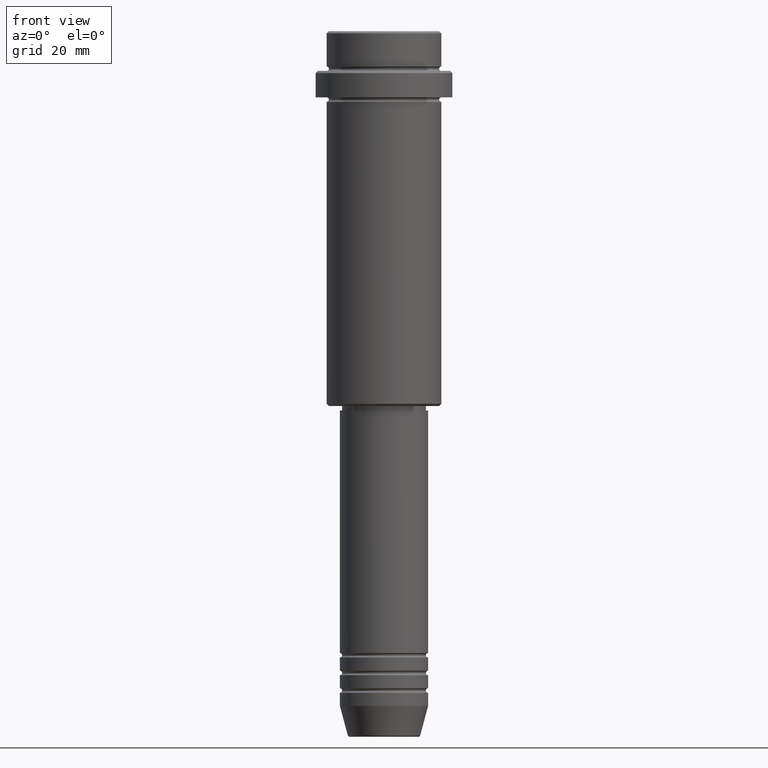
[diagram: clean part render]
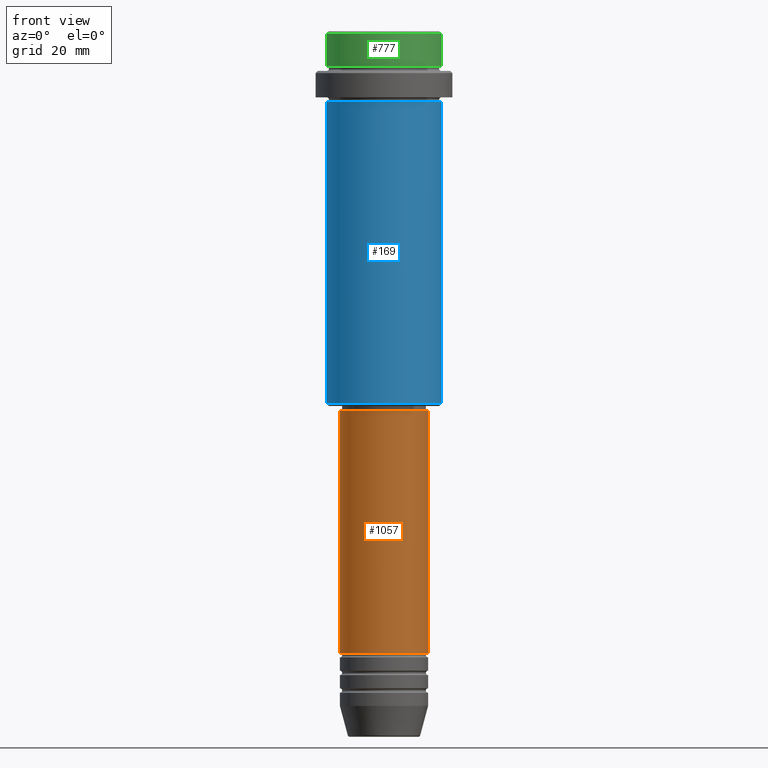
[diagram: same view with three faces highlighted in distinct colors, each labeled with its STEP entity id]
A machine part, front view with three faces highlighted in distinct colors.
Their STEP definitions:

[orange] entity #1057 — the highlighted cylindrical surface (partial cylindrical patch) has radius 10 mm, axis along (-0, -0, 1).
#23 = EDGE_CURVE ( 'NONE', #482, #1293, #562, .T. ) ;
#60 = DIRECTION ( 'NONE',  ( 1.000000000000000000, 0.000000000000000000, 0.000000000000000000 ) ) ;
#138 = DIRECTION ( 'NONE',  ( -0.000000000000000000, -0.000000000000000000, 1.000000000000000000 ) ) ;
#172 = CARTESIAN_POINT ( 'NONE',  ( 0.000000000000000000, 0.000000000000000000, -140.9999999999999147 ) ) ;
#187 = CARTESIAN_POINT ( 'NONE',  ( 10.00000000000000178, 0.000000000000000000, -86.00000000000000000 ) ) ;
#212 = ORIENTED_EDGE ( 'NONE', *, *, #23, .F. ) ;
#266 = CARTESIAN_POINT ( 'NONE',  ( 0.000000000000000000, 0.000000000000000000, -86.00000000000000000 ) ) ;
#278 = EDGE_CURVE ( 'NONE', #340, #482, #552, .T. ) ;
#305 = EDGE_LOOP ( 'NONE', ( #1283, #943, #604, #212 ) ) ;
#309 = VERTEX_POINT ( 'NONE', #771 ) ;
#340 = VERTEX_POINT ( 'NONE', #1122 ) ;
#373 = DIRECTION ( 'NONE',  ( 1.000000000000000000, 0.000000000000000000, 0.000000000000000000 ) ) ;
#422 = VECTOR ( 'NONE', #519, 1000.000000000000000 ) ;
#482 = VERTEX_POINT ( 'NONE', #957 ) ;
#519 = DIRECTION ( 'NONE',  ( -0.000000000000000000, -0.000000000000000000, 1.000000000000000000 ) ) ;
#552 = LINE ( 'NONE', #767, #575 ) ;
#562 = CIRCLE ( 'NONE', #1163, 10.00000000000000178 ) ;
#563 = CYLINDRICAL_SURFACE ( 'NONE', #875, 10.00000000000000178 ) ;
#575 = VECTOR ( 'NONE', #138, 1000.000000000000000 ) ;
#596 = FACE_OUTER_BOUND ( 'NONE', #305, .T. ) ;
#604 = ORIENTED_EDGE ( 'NONE', *, *, #691, .T. ) ;
#671 = DIRECTION ( 'NONE',  ( -0.000000000000000000, -0.000000000000000000, 1.000000000000000000 ) ) ;
#691 = EDGE_CURVE ( 'NONE', #309, #1293, #741, .T. ) ;
#726 = DIRECTION ( 'NONE',  ( -0.000000000000000000, -0.000000000000000000, 1.000000000000000000 ) ) ;
#741 = LINE ( 'NONE', #1176, #422 ) ;
#767 = CARTESIAN_POINT ( 'NONE',  ( -10.00000000000000178, 1.224646799147353454E-15, 0.000000000000000000 ) ) ;
#771 = CARTESIAN_POINT ( 'NONE',  ( 10.00000000000000000, 0.000000000000000000, -140.9999999999999147 ) ) ;
#795 = DIRECTION ( 'NONE',  ( 1.000000000000000000, 0.000000000000000000, 0.000000000000000000 ) ) ;
#875 = AXIS2_PLACEMENT_3D ( 'NONE', #1217, #671, #795 ) ;
#943 = ORIENTED_EDGE ( 'NONE', *, *, #1321, .T. ) ;
#957 = CARTESIAN_POINT ( 'NONE',  ( -10.00000000000000178, 1.224646799147353454E-15, -86.00000000000000000 ) ) ;
#1057 = ADVANCED_FACE ( 'NONE', ( #596 ), #563, .T. ) ;
#1122 = CARTESIAN_POINT ( 'NONE',  ( -10.00000000000000000, 1.224646799147353256E-15, -140.9999999999999147 ) ) ;
#1147 = DIRECTION ( 'NONE',  ( -0.000000000000000000, -0.000000000000000000, 1.000000000000000000 ) ) ;
#1163 = AXIS2_PLACEMENT_3D ( 'NONE', #266, #1147, #60 ) ;
#1176 = CARTESIAN_POINT ( 'NONE',  ( 10.00000000000000178, 0.000000000000000000, 0.000000000000000000 ) ) ;
#1217 = CARTESIAN_POINT ( 'NONE',  ( 0.000000000000000000, 0.000000000000000000, 0.000000000000000000 ) ) ;
#1259 = CIRCLE ( 'NONE', #1305, 10.00000000000000000 ) ;
#1283 = ORIENTED_EDGE ( 'NONE', *, *, #278, .F. ) ;
#1293 = VERTEX_POINT ( 'NONE', #187 ) ;
#1305 = AXIS2_PLACEMENT_3D ( 'NONE', #172, #726, #373 ) ;
#1321 = EDGE_CURVE ( 'NONE', #340, #309, #1259, .T. ) ;

[blue] entity #169 — the highlighted cylindrical surface (partial cylindrical patch) has radius 13 mm, axis along (-0, -0, 1).
#7 = EDGE_LOOP ( 'NONE', ( #1278, #505, #537, #31 ) ) ;
#31 = ORIENTED_EDGE ( 'NONE', *, *, #72, .F. ) ;
#40 = VECTOR ( 'NONE', #102, 1000.000000000000000 ) ;
#58 = CYLINDRICAL_SURFACE ( 'NONE', #775, 13.00000000000000000 ) ;
#66 = CARTESIAN_POINT ( 'NONE',  ( 0.000000000000000000, 0.000000000000000000, 0.000000000000000000 ) ) ;
#72 = EDGE_CURVE ( 'NONE', #254, #1387, #1298, .T. ) ;
#83 = CARTESIAN_POINT ( 'NONE',  ( 13.00000000000000000, 0.000000000000000000, -16.00000000000000000 ) ) ;
#102 = DIRECTION ( 'NONE',  ( -0.000000000000000000, -0.000000000000000000, 1.000000000000000000 ) ) ;
#128 = DIRECTION ( 'NONE',  ( -0.000000000000000000, -0.000000000000000000, 1.000000000000000000 ) ) ;
#169 = ADVANCED_FACE ( 'NONE', ( #1267 ), #58, .T. ) ;
#254 = VERTEX_POINT ( 'NONE', #399 ) ;
#287 = CARTESIAN_POINT ( 'NONE',  ( 0.000000000000000000, 0.000000000000000000, -16.00000000000000000 ) ) ;
#379 = AXIS2_PLACEMENT_3D ( 'NONE', #619, #740, #646 ) ;
#399 = CARTESIAN_POINT ( 'NONE',  ( -13.00000000000000000, 1.592040838891559095E-15, -16.00000000000000000 ) ) ;
#434 = EDGE_CURVE ( 'NONE', #458, #1387, #1002, .T. ) ;
#458 = VERTEX_POINT ( 'NONE', #1111 ) ;
#505 = ORIENTED_EDGE ( 'NONE', *, *, #1417, .T. ) ;
#522 = CARTESIAN_POINT ( 'NONE',  ( -13.00000000000000000, 1.592040838891559095E-15, -84.49999999999998579 ) ) ;
#537 = ORIENTED_EDGE ( 'NONE', *, *, #434, .T. ) ;
#619 = CARTESIAN_POINT ( 'NONE',  ( 0.000000000000000000, 0.000000000000000000, -84.49999999999998579 ) ) ;
#646 = DIRECTION ( 'NONE',  ( -1.000000000000000000, 0.000000000000000000, 0.000000000000000000 ) ) ;
#679 = AXIS2_PLACEMENT_3D ( 'NONE', #287, #846, #1275 ) ;
#740 = DIRECTION ( 'NONE',  ( -0.000000000000000000, -0.000000000000000000, 1.000000000000000000 ) ) ;
#775 = AXIS2_PLACEMENT_3D ( 'NONE', #66, #1365, #829 ) ;
#790 = CARTESIAN_POINT ( 'NONE',  ( -13.00000000000000000, 1.592040838891559095E-15, 0.000000000000000000 ) ) ;
#829 = DIRECTION ( 'NONE',  ( 1.000000000000000000, 0.000000000000000000, 0.000000000000000000 ) ) ;
#846 = DIRECTION ( 'NONE',  ( -0.000000000000000000, -0.000000000000000000, 1.000000000000000000 ) ) ;
#891 = VERTEX_POINT ( 'NONE', #522 ) ;
#893 = CARTESIAN_POINT ( 'NONE',  ( 13.00000000000000000, 0.000000000000000000, 0.000000000000000000 ) ) ;
#974 = VECTOR ( 'NONE', #128, 1000.000000000000000 ) ;
#1002 = LINE ( 'NONE', #893, #40 ) ;
#1111 = CARTESIAN_POINT ( 'NONE',  ( 13.00000000000000000, 0.000000000000000000, -84.49999999999998579 ) ) ;
#1157 = EDGE_CURVE ( 'NONE', #891, #254, #1230, .T. ) ;
#1230 = LINE ( 'NONE', #790, #974 ) ;
#1267 = FACE_OUTER_BOUND ( 'NONE', #7, .T. ) ;
#1275 = DIRECTION ( 'NONE',  ( 1.000000000000000000, 0.000000000000000000, 0.000000000000000000 ) ) ;
#1278 = ORIENTED_EDGE ( 'NONE', *, *, #1157, .F. ) ;
#1298 = CIRCLE ( 'NONE', #679, 13.00000000000000000 ) ;
#1349 = CIRCLE ( 'NONE', #379, 13.00000000000000000 ) ;
#1365 = DIRECTION ( 'NONE',  ( -0.000000000000000000, -0.000000000000000000, 1.000000000000000000 ) ) ;
#1387 = VERTEX_POINT ( 'NONE', #83 ) ;
#1417 = EDGE_CURVE ( 'NONE', #891, #458, #1349, .T. ) ;

[green] entity #777 — the highlighted cylindrical surface (partial cylindrical patch) has radius 13 mm, axis along (-0, -0, 1).
#182 = CIRCLE ( 'NONE', #1013, 12.99999999999999822 ) ;
#185 = CYLINDRICAL_SURFACE ( 'NONE', #1065, 12.99999999999999822 ) ;
#283 = VERTEX_POINT ( 'NONE', #1313 ) ;
#322 = DIRECTION ( 'NONE',  ( -0.000000000000000000, -0.000000000000000000, 1.000000000000000000 ) ) ;
#329 = LINE ( 'NONE', #785, #798 ) ;
#338 = CARTESIAN_POINT ( 'NONE',  ( 0.000000000000000000, 0.000000000000000000, -0.4999999999999622524 ) ) ;
#371 = ORIENTED_EDGE ( 'NONE', *, *, #756, .T. ) ;
#390 = AXIS2_PLACEMENT_3D ( 'NONE', #338, #764, #542 ) ;
#431 = LINE ( 'NONE', #637, #1188 ) ;
#448 = CARTESIAN_POINT ( 'NONE',  ( 0.000000000000000000, 0.000000000000000000, -7.999999999999998224 ) ) ;
#506 = DIRECTION ( 'NONE',  ( 1.000000000000000000, 0.000000000000000000, 0.000000000000000000 ) ) ;
#516 = ORIENTED_EDGE ( 'NONE', *, *, #1040, .T. ) ;
#529 = CARTESIAN_POINT ( 'NONE',  ( 12.99999999999999822, 0.000000000000000000, -7.999999999999998224 ) ) ;
#540 = ORIENTED_EDGE ( 'NONE', *, *, #1182, .T. ) ;
#542 = DIRECTION ( 'NONE',  ( 1.000000000000000000, 0.000000000000000000, 0.000000000000000000 ) ) ;
#572 = EDGE_CURVE ( 'NONE', #1017, #283, #329, .T. ) ;
#617 = CARTESIAN_POINT ( 'NONE',  ( 0.000000000000000000, 0.000000000000000000, 0.000000000000000000 ) ) ;
#637 = CARTESIAN_POINT ( 'NONE',  ( 12.99999999999999822, 0.000000000000000000, 0.000000000000000000 ) ) ;
#652 = EDGE_LOOP ( 'NONE', ( #1300, #540, #516, #371 ) ) ;
#680 = DIRECTION ( 'NONE',  ( -0.000000000000000000, -0.000000000000000000, 1.000000000000000000 ) ) ;
#686 = CARTESIAN_POINT ( 'NONE',  ( -12.99999999999999822, 1.592040838891558898E-15, -7.999999999999998224 ) ) ;
#756 = EDGE_CURVE ( 'NONE', #1369, #283, #1331, .T. ) ;
#764 = DIRECTION ( 'NONE',  ( 0.000000000000000000, 0.000000000000000000, -1.000000000000000000 ) ) ;
#777 = ADVANCED_FACE ( 'NONE', ( #1380 ), #185, .T. ) ;
#785 = CARTESIAN_POINT ( 'NONE',  ( -12.99999999999999822, 1.592040838891558898E-15, 0.000000000000000000 ) ) ;
#798 = VECTOR ( 'NONE', #680, 1000.000000000000000 ) ;
#867 = CARTESIAN_POINT ( 'NONE',  ( 12.99999999999999822, 0.000000000000000000, -0.4999999999999622524 ) ) ;
#909 = DIRECTION ( 'NONE',  ( -0.000000000000000000, -0.000000000000000000, 1.000000000000000000 ) ) ;
#1013 = AXIS2_PLACEMENT_3D ( 'NONE', #448, #909, #1333 ) ;
#1017 = VERTEX_POINT ( 'NONE', #686 ) ;
#1040 = EDGE_CURVE ( 'NONE', #1400, #1369, #431, .T. ) ;
#1065 = AXIS2_PLACEMENT_3D ( 'NONE', #617, #1067, #506 ) ;
#1067 = DIRECTION ( 'NONE',  ( -0.000000000000000000, -0.000000000000000000, 1.000000000000000000 ) ) ;
#1182 = EDGE_CURVE ( 'NONE', #1017, #1400, #182, .T. ) ;
#1188 = VECTOR ( 'NONE', #322, 1000.000000000000000 ) ;
#1300 = ORIENTED_EDGE ( 'NONE', *, *, #572, .F. ) ;
#1313 = CARTESIAN_POINT ( 'NONE',  ( -12.99999999999999822, 1.592040838891558898E-15, -0.4999999999999622524 ) ) ;
#1331 = CIRCLE ( 'NONE', #390, 12.99999999999999822 ) ;
#1333 = DIRECTION ( 'NONE',  ( 1.000000000000000000, 0.000000000000000000, 0.000000000000000000 ) ) ;
#1369 = VERTEX_POINT ( 'NONE', #867 ) ;
#1380 = FACE_OUTER_BOUND ( 'NONE', #652, .T. ) ;
#1400 = VERTEX_POINT ( 'NONE', #529 ) ;